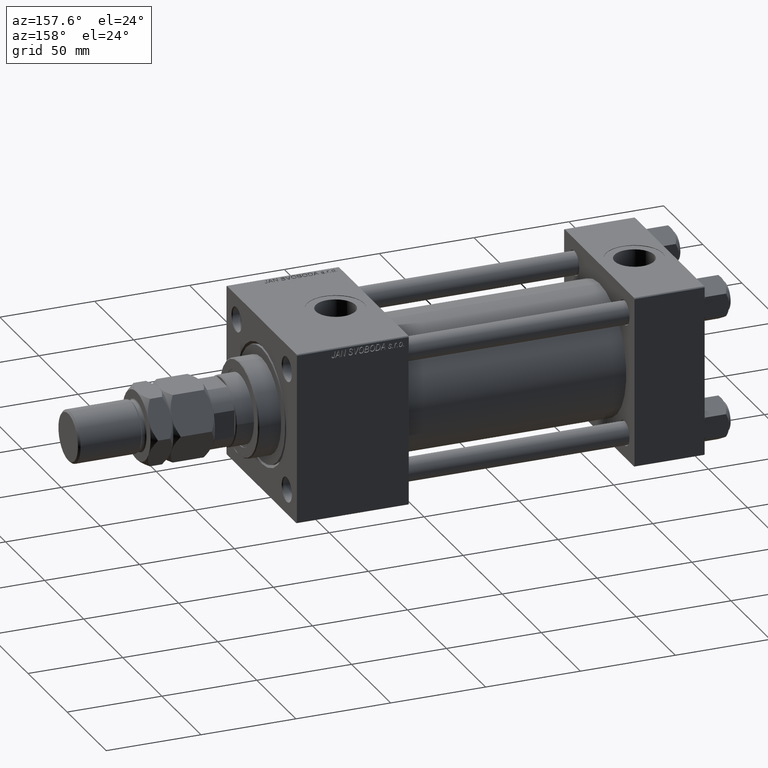
[diagram: clean part render]
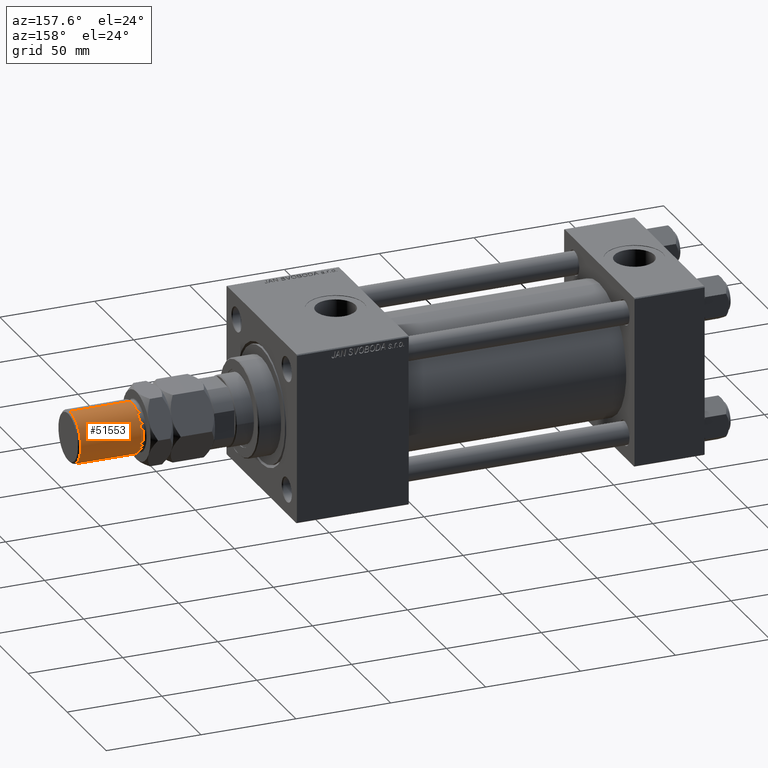
[diagram: same view with one face highlighted and labeled with its STEP entity id]
A machine part, auxiliary view. The second image highlights one B-rep face of the part: STEP entity #51553.
In plain terms, the highlighted cylindrical surface (edge-blend (fillet) strip) has radius 13.5 mm, axis along (-1, -0, 0).
Its self-contained STEP definition (entity closure, byte-faithful):
#1789 = DIRECTION ( 'NONE',  ( 1.000000000000000000, 0.000000000000000000, 0.000000000000000000 ) ) ;
#2210 = CARTESIAN_POINT ( 'NONE',  ( -13.50000000000000000, 0.000000000000000000, 68.99999999999998579 ) ) ;
#5391 = VERTEX_POINT ( 'NONE', #46056 ) ;
#5723 = CARTESIAN_POINT ( 'NONE',  ( 13.50000000000000000, 1.653273178848926867E-15, 37.00000000000000000 ) ) ;
#7288 = EDGE_CURVE ( 'NONE', #22586, #17532, #32170, .T. ) ;
#11702 = CYLINDRICAL_SURFACE ( 'NONE', #47125, 13.50000000000000000 ) ;
#12435 = VERTEX_POINT ( 'NONE', #2210 ) ;
#13658 = CARTESIAN_POINT ( 'NONE',  ( 0.000000000000000000, 0.000000000000000000, 68.99999999999998579 ) ) ;
#16439 = CARTESIAN_POINT ( 'NONE',  ( -13.50000000000000000, 0.000000000000000000, 37.00000000000000000 ) ) ;
#17071 = DIRECTION ( 'NONE',  ( 0.000000000000000000, 0.000000000000000000, -1.000000000000000000 ) ) ;
#17176 = EDGE_CURVE ( 'NONE', #12435, #17532, #21735, .T. ) ;
#17532 = VERTEX_POINT ( 'NONE', #16439 ) ;
#17571 = CIRCLE ( 'NONE', #48560, 13.50000000000000000 ) ;
#20658 = VECTOR ( 'NONE', #34076, 1000.000000000000000 ) ;
#21735 = LINE ( 'NONE', #22261, #20658 ) ;
#22261 = CARTESIAN_POINT ( 'NONE',  ( -13.50000000000000000, 0.000000000000000000, 70.00000000000000000 ) ) ;
#22586 = VERTEX_POINT ( 'NONE', #5723 ) ;
#23009 = CARTESIAN_POINT ( 'NONE',  ( 0.000000000000000000, 0.000000000000000000, 70.00000000000000000 ) ) ;
#23694 = DIRECTION ( 'NONE',  ( -0.000000000000000000, -0.000000000000000000, -1.000000000000000000 ) ) ;
#23957 = LINE ( 'NONE', #51486, #30111 ) ;
#25329 = ORIENTED_EDGE ( 'NONE', *, *, #43259, .T. ) ;
#26676 = ORIENTED_EDGE ( 'NONE', *, *, #47884, .T. ) ;
#27723 = DIRECTION ( 'NONE',  ( -0.000000000000000000, -0.000000000000000000, -1.000000000000000000 ) ) ;
#30111 = VECTOR ( 'NONE', #23694, 1000.000000000000000 ) ;
#32170 = CIRCLE ( 'NONE', #34747, 13.50000000000000000 ) ;
#32908 = ORIENTED_EDGE ( 'NONE', *, *, #7288, .T. ) ;
#33054 = ORIENTED_EDGE ( 'NONE', *, *, #17176, .F. ) ;
#34076 = DIRECTION ( 'NONE',  ( -0.000000000000000000, -0.000000000000000000, -1.000000000000000000 ) ) ;
#34747 = AXIS2_PLACEMENT_3D ( 'NONE', #50047, #50568, #1789 ) ;
#38265 = EDGE_LOOP ( 'NONE', ( #26676, #25329, #32908, #33054 ) ) ;
#39029 = DIRECTION ( 'NONE',  ( -1.000000000000000000, 0.000000000000000000, 0.000000000000000000 ) ) ;
#43259 = EDGE_CURVE ( 'NONE', #5391, #22586, #23957, .T. ) ;
#44889 = DIRECTION ( 'NONE',  ( 1.000000000000000000, 0.000000000000000000, 0.000000000000000000 ) ) ;
#46056 = CARTESIAN_POINT ( 'NONE',  ( 13.50000000000000000, 1.653273178848926867E-15, 68.99999999999998579 ) ) ;
#47125 = AXIS2_PLACEMENT_3D ( 'NONE', #23009, #27723, #39029 ) ;
#47884 = EDGE_CURVE ( 'NONE', #12435, #5391, #17571, .T. ) ;
#48560 = AXIS2_PLACEMENT_3D ( 'NONE', #13658, #17071, #44889 ) ;
#50047 = CARTESIAN_POINT ( 'NONE',  ( 0.000000000000000000, 0.000000000000000000, 37.00000000000000000 ) ) ;
#50568 = DIRECTION ( 'NONE',  ( -0.000000000000000000, -0.000000000000000000, 1.000000000000000000 ) ) ;
#51486 = CARTESIAN_POINT ( 'NONE',  ( 13.50000000000000000, 1.653273178848926867E-15, 70.00000000000000000 ) ) ;
#51553 = ADVANCED_FACE ( 'NONE', ( #51564 ), #11702, .T. ) ;
#51564 = FACE_OUTER_BOUND ( 'NONE', #38265, .T. ) ;